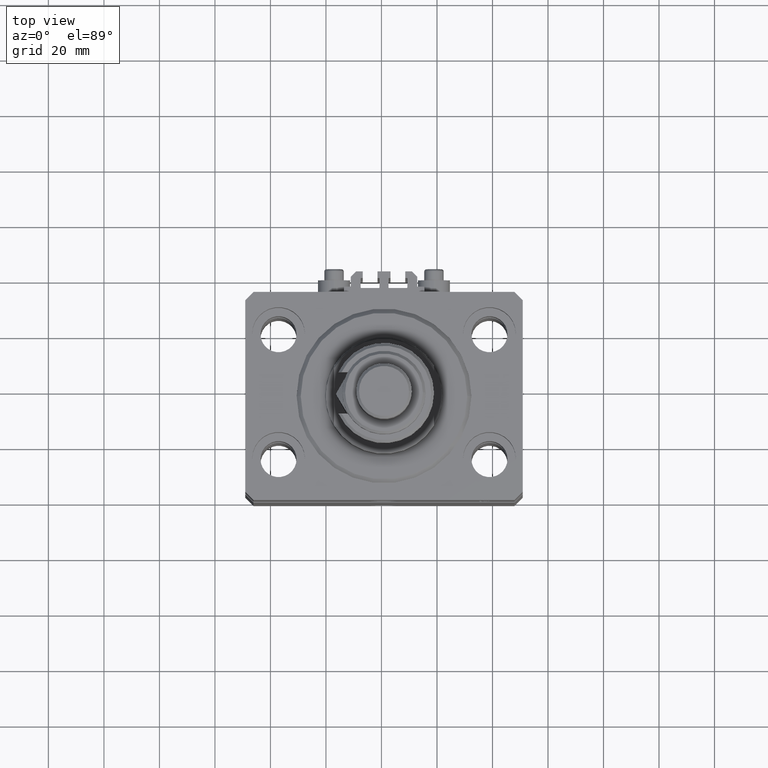
[diagram: clean part render]
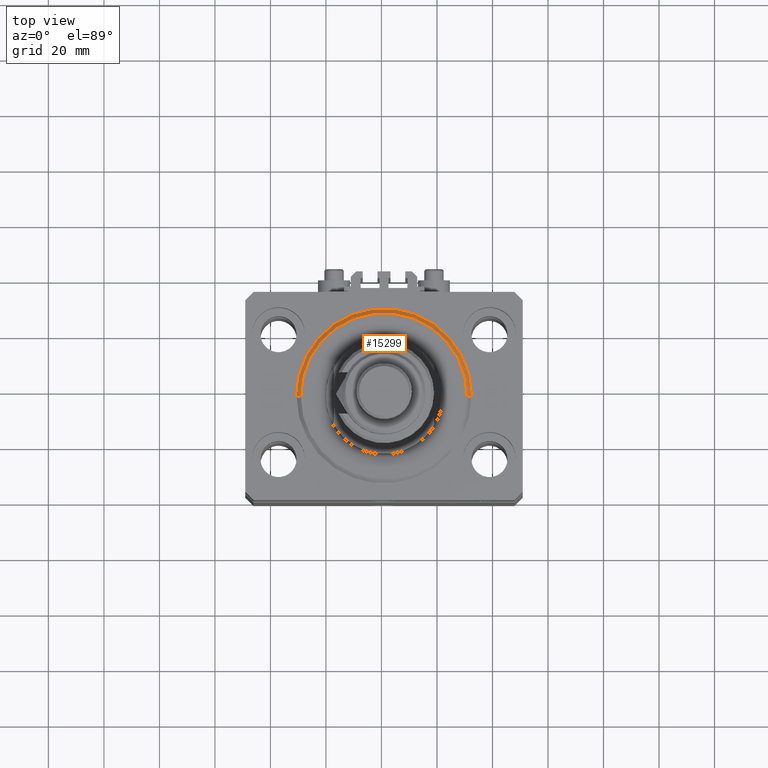
[diagram: same view with one face highlighted and labeled with its STEP entity id]
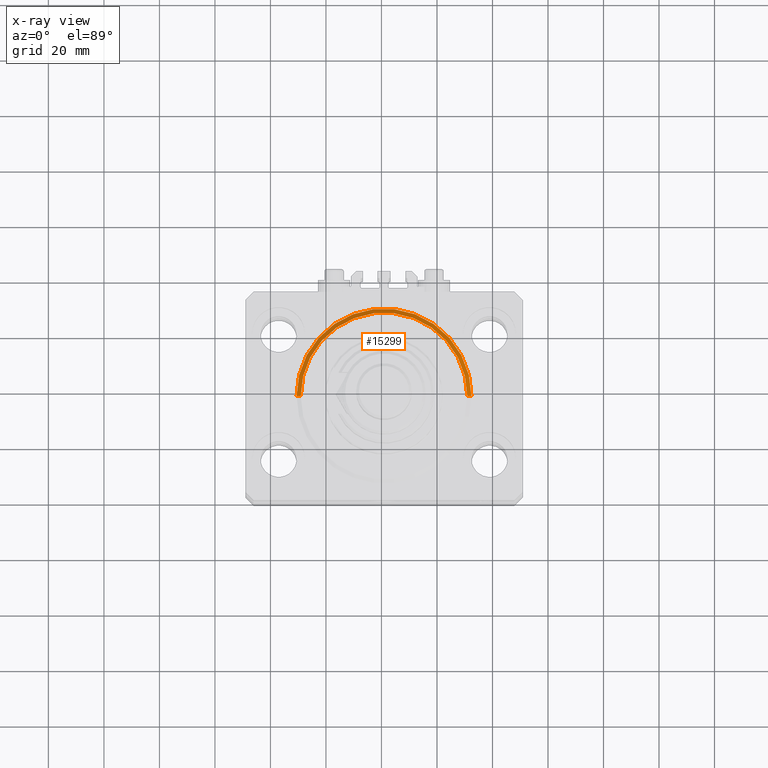
[diagram: x-ray of the same camera — body ghosted, the highlighted face saturated]
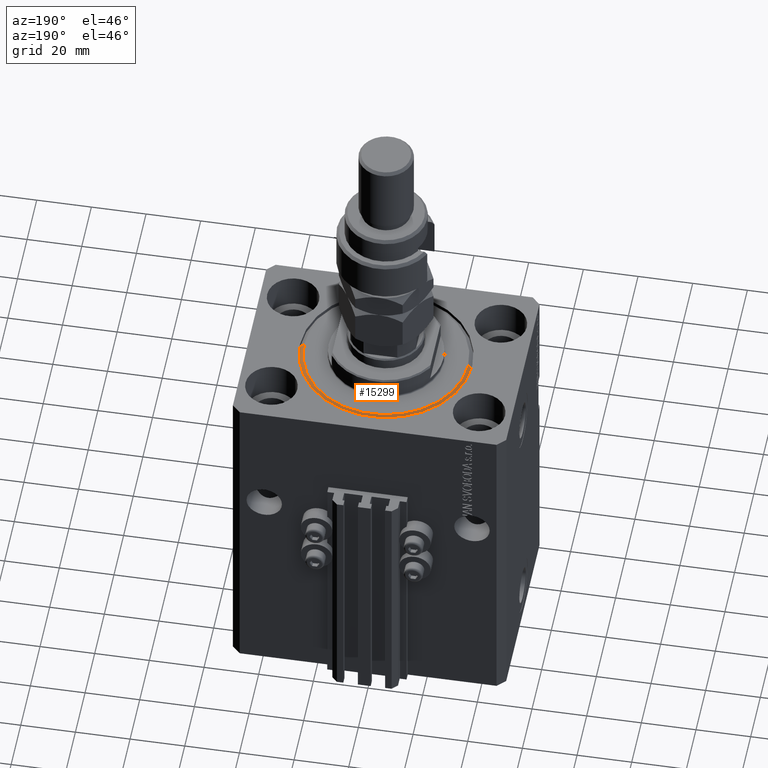
[diagram: same view with one face highlighted and labeled with its STEP entity id]
A machine part, top view. The second image highlights one B-rep face of the part: STEP entity #15299.
The next image is the same camera in x-ray: the body ghosted, the highlighted face saturated — about 0% of this face is hidden behind the body in this view.
A second angle (auxiliary view) of the same face is appended — the face is thin or edge-on in the first view.
In plain terms, the highlighted conical surface has half-angle 45 deg.
Its self-contained STEP definition (entity closure, byte-faithful):
#1407 = CONICAL_SURFACE ( 'NONE', #20987, 31.50000000000000000, 0.7853981633974482790 ) ;
#2568 = DIRECTION ( 'NONE',  ( -0.000000000000000000, -0.000000000000000000, 1.000000000000000000 ) ) ;
#3602 = CIRCLE ( 'NONE', #14174, 31.50000000000000000 ) ;
#4120 = CARTESIAN_POINT ( 'NONE',  ( -31.50000000000000000, 0.000000000000000000, 1.499999999999980460 ) ) ;
#4373 = DIRECTION ( 'NONE',  ( 1.000000000000000000, 0.000000000000000000, 0.000000000000000000 ) ) ;
#4552 = EDGE_CURVE ( 'NONE', #25116, #20287, #42087, .T. ) ;
#5374 = CARTESIAN_POINT ( 'NONE',  ( 0.000000000000000000, 0.000000000000000000, 0.000000000000000000 ) ) ;
#8483 = CIRCLE ( 'NONE', #32122, 30.00000000000002132 ) ;
#9291 = VECTOR ( 'NONE', #41839, 1000.000000000000114 ) ;
#10626 = VERTEX_POINT ( 'NONE', #4120 ) ;
#11301 = CARTESIAN_POINT ( 'NONE',  ( 0.000000000000000000, 0.000000000000000000, 1.499999999999980460 ) ) ;
#12296 = DIRECTION ( 'NONE',  ( -0.000000000000000000, -0.000000000000000000, -1.000000000000000000 ) ) ;
#12546 = DIRECTION ( 'NONE',  ( 1.000000000000000000, 0.000000000000000000, 0.000000000000000000 ) ) ;
#13123 = VERTEX_POINT ( 'NONE', #17280 ) ;
#14068 = DIRECTION ( 'NONE',  ( 1.000000000000000000, 0.000000000000000000, 0.000000000000000000 ) ) ;
#14174 = AXIS2_PLACEMENT_3D ( 'NONE', #11301, #47029, #4373 ) ;
#15299 = ADVANCED_FACE ( 'NONE', ( #17637 ), #1407, .T. ) ;
#15803 = ORIENTED_EDGE ( 'NONE', *, *, #30504, .T. ) ;
#17280 = CARTESIAN_POINT ( 'NONE',  ( -30.00000000000002132, 3.765788907378112117E-15, 0.000000000000000000 ) ) ;
#17637 = FACE_OUTER_BOUND ( 'NONE', #37511, .T. ) ;
#20287 = VERTEX_POINT ( 'NONE', #36453 ) ;
#20987 = AXIS2_PLACEMENT_3D ( 'NONE', #45973, #2568, #14068 ) ;
#25116 = VERTEX_POINT ( 'NONE', #48926 ) ;
#28909 = ORIENTED_EDGE ( 'NONE', *, *, #4552, .F. ) ;
#29968 = DIRECTION ( 'NONE',  ( -0.7071067811865474617, 8.659560562354932858E-17, 0.7071067811865474617 ) ) ;
#30223 = CARTESIAN_POINT ( 'NONE',  ( -31.50000000000000000, 3.857637417314162689E-15, 1.499999999999980460 ) ) ;
#30504 = EDGE_CURVE ( 'NONE', #13123, #10626, #49381, .T. ) ;
#32122 = AXIS2_PLACEMENT_3D ( 'NONE', #5374, #12296, #12546 ) ;
#32509 = EDGE_CURVE ( 'NONE', #20287, #10626, #3602, .T. ) ;
#32610 = EDGE_CURVE ( 'NONE', #13123, #25116, #8483, .T. ) ;
#36453 = CARTESIAN_POINT ( 'NONE',  ( 31.50000000000000000, 3.857637417314162689E-15, 1.499999999999980460 ) ) ;
#37511 = EDGE_LOOP ( 'NONE', ( #49555, #15803, #46429, #28909 ) ) ;
#37767 = VECTOR ( 'NONE', #29968, 1000.000000000000114 ) ;
#41839 = DIRECTION ( 'NONE',  ( 0.7071067811865474617, 0.000000000000000000, 0.7071067811865474617 ) ) ;
#42087 = LINE ( 'NONE', #49487, #9291 ) ;
#45973 = CARTESIAN_POINT ( 'NONE',  ( 0.000000000000000000, 0.000000000000000000, 1.499999999999980460 ) ) ;
#46429 = ORIENTED_EDGE ( 'NONE', *, *, #32509, .F. ) ;
#47029 = DIRECTION ( 'NONE',  ( -0.000000000000000000, -0.000000000000000000, 1.000000000000000000 ) ) ;
#48926 = CARTESIAN_POINT ( 'NONE',  ( 30.00000000000002132, 0.000000000000000000, 0.000000000000000000 ) ) ;
#49381 = LINE ( 'NONE', #30223, #37767 ) ;
#49487 = CARTESIAN_POINT ( 'NONE',  ( 31.50000000000000000, 0.000000000000000000, 1.499999999999980460 ) ) ;
#49555 = ORIENTED_EDGE ( 'NONE', *, *, #32610, .F. ) ;